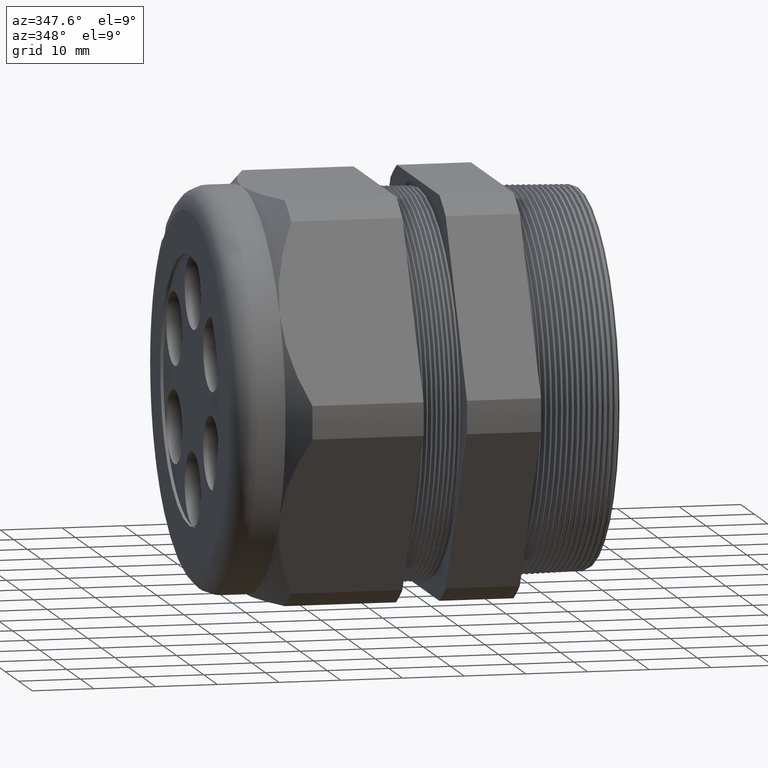
[diagram: clean part render]
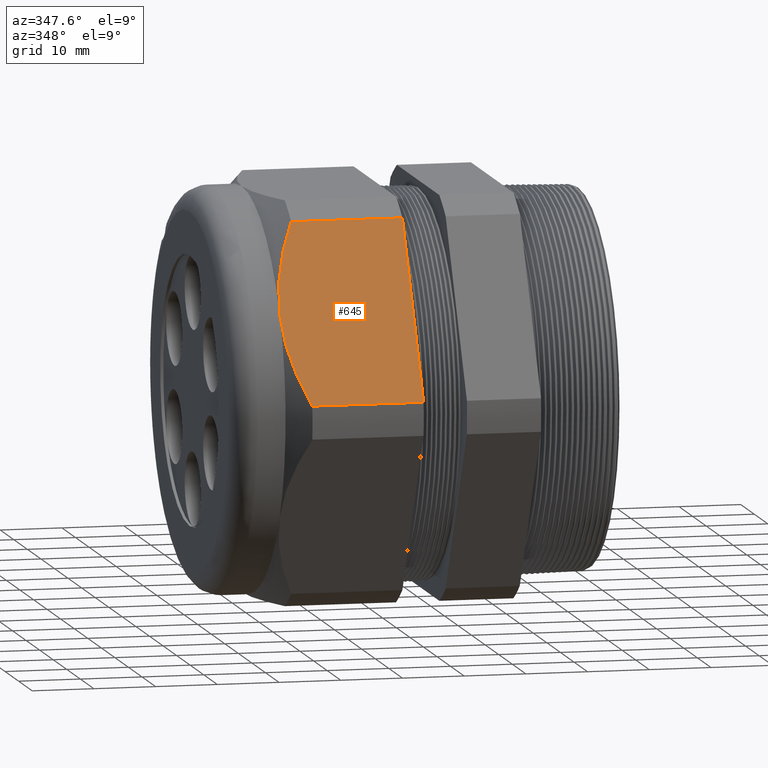
[diagram: same view with one face highlighted and labeled with its STEP entity id]
A machine part, auxiliary view. The second image highlights one B-rep face of the part: STEP entity #645.
In plain terms, the highlighted planar face has unit normal (0, -0.866, 0.5).
Its self-contained STEP definition (entity closure, byte-faithful):
#645 = ADVANCED_FACE ( 'NONE', ( #2690 ), #2689, .T. ) ;
#646 = EDGE_LOOP ( 'NONE', ( #647, #648, #651, #654, #713 ) ) ;
#647 = ORIENTED_EDGE ( 'NONE', *, *, #671, .T. ) ;
#648 = ORIENTED_EDGE ( 'NONE', *, *, #649, .T. ) ;
#649 = EDGE_CURVE ( 'NONE', #669, #650, #2746, .T. ) ;
#650 = VERTEX_POINT ( 'NONE', #2745 ) ;
#651 = ORIENTED_EDGE ( 'NONE', *, *, #652, .T. ) ;
#652 = EDGE_CURVE ( 'NONE', #650, #653, #2733, .T. ) ;
#653 = VERTEX_POINT ( 'NONE', #2734 ) ;
#654 = ORIENTED_EDGE ( 'NONE', *, *, #655, .F. ) ;
#655 = EDGE_CURVE ( 'NONE', #656, #653, #2724, .T. ) ;
#656 = VERTEX_POINT ( 'NONE', #2780 ) ;
#669 = VERTEX_POINT ( 'NONE', #2754 ) ;
#671 = EDGE_CURVE ( 'NONE', #672, #669, #2810, .T. ) ;
#672 = VERTEX_POINT ( 'NONE', #2806 ) ;
#713 = ORIENTED_EDGE ( 'NONE', *, *, #714, .F. ) ;
#714 = EDGE_CURVE ( 'NONE', #672, #656, #2602, .T. ) ;
#2598 = DIRECTION ( 'NONE',  ( 0.0000000000000000000, -0.4999999999999992800, -0.8660254037844390400 ) ) ;
#2599 = VECTOR ( 'NONE', #2598, 39.37007874015748900 ) ;
#2601 = CARTESIAN_POINT ( 'NONE',  ( -1.058802799999999400, -0.7985125168440829800, 1.176935750346350500 ) ) ;
#2602 = LINE ( 'NONE', #2601, #2599 ) ;
#2688 = AXIS2_PLACEMENT_3D ( 'NONE', #2749, #2748, #2747 ) ;
#2689 = PLANE ( 'NONE',  #2688 ) ;
#2690 = FACE_OUTER_BOUND ( 'NONE', #646, .T. ) ;
#2721 = DIRECTION ( 'NONE',  ( -1.000000000000000000, 0.0000000000000000000, 0.0000000000000000000 ) ) ;
#2722 = VECTOR ( 'NONE', #2721, 39.37007874015748100 ) ;
#2723 = CARTESIAN_POINT ( 'NONE',  ( 0.2400000000000001900, -1.416843767287496500, 0.1059546086707598600 ) ) ;
#2724 = LINE ( 'NONE', #2723, #2722 ) ;
#2725 = CARTESIAN_POINT ( 'NONE',  ( -1.768492000000000200, -1.416843767287496500, 0.1059546086707598600 ) ) ;
#2726 = CARTESIAN_POINT ( 'NONE',  ( -1.789807280376754000, -1.392288398414134300, 0.1484857551580196500 ) ) ;
#2727 = CARTESIAN_POINT ( 'NONE',  ( -1.809379497512200000, -1.367365115742175100, 0.1916541470372537200 ) ) ;
#2728 = CARTESIAN_POINT ( 'NONE',  ( -1.844076898263658400, -1.316757461105979400, 0.2793091761190434300 ) ) ;
#2729 = CARTESIAN_POINT ( 'NONE',  ( -1.859065044692606700, -1.291267087779650200, 0.3234597978241434100 ) ) ;
#2730 = CARTESIAN_POINT ( 'NONE',  ( -1.895822934946115800, -1.214147434025103500, 0.4570349563891387100 ) ) ;
#2731 = CARTESIAN_POINT ( 'NONE',  ( -1.909291999999999500, -1.161862181089929000, 0.5475956709594516100 ) ) ;
#2732 = CARTESIAN_POINT ( 'NONE',  ( -1.909291999999999500, -1.108512516844082400, 0.6399999999999993500 ) ) ;
#2733 = B_SPLINE_CURVE_WITH_KNOTS ( 'NONE', 3,
 ( #2732, #2731, #2730, #2729, #2728, #2727, #2726, #2725 ),
 .UNSPECIFIED., .F., .F.,
 ( 4, 2, 2, 4 ),
 ( 0.01607611893436946400, 0.02410854275338653000, 0.02812475466289506000, 0.03214096657240359000 ),
 .UNSPECIFIED. ) ;
#2734 = CARTESIAN_POINT ( 'NONE',  ( -1.768492000000000200, -1.416843767287496500, 0.1059546086707598600 ) ) ;
#2735 = CARTESIAN_POINT ( 'NONE',  ( -1.909291999999999500, -1.108512516844082400, 0.6399999999999993500 ) ) ;
#2736 = CARTESIAN_POINT ( 'NONE',  ( -1.909291999999999800, -1.095165949251063900, 0.6631169331777591000 ) ) ;
#2737 = CARTESIAN_POINT ( 'NONE',  ( -1.908447375922473200, -1.081697307527198500, 0.6864453049524360500 ) ) ;
#2738 = CARTESIAN_POINT ( 'NONE',  ( -1.905092703011700000, -1.054937557301920200, 0.7327945519404710500 ) ) ;
#2739 = CARTESIAN_POINT ( 'NONE',  ( -1.902593623238848500, -1.041660076878359900, 0.7557918226305783100 ) ) ;
#2740 = CARTESIAN_POINT ( 'NONE',  ( -1.892779944983450400, -1.002116279323628700, 0.8242836891195908200 ) ) ;
#2741 = CARTESIAN_POINT ( 'NONE',  ( -1.883148185439523300, -0.9761386958899320700, 0.8692781834846132800 ) ) ;
#2742 = CARTESIAN_POINT ( 'NONE',  ( -1.846263399014646900, -0.8992014914594107500, 1.002537330550589800 ) ) ;
#2743 = CARTESIAN_POINT ( 'NONE',  ( -1.811069874631296300, -0.8492313093245910100, 1.089088224871567400 ) ) ;
#2744 = CARTESIAN_POINT ( 'NONE',  ( -1.768492000000000000, -0.8001812664006672200, 1.174045391329238400 ) ) ;
#2745 = CARTESIAN_POINT ( 'NONE',  ( -1.909291999999999500, -1.108512516844082400, 0.6399999999999993500 ) ) ;
#2746 = B_SPLINE_CURVE_WITH_KNOTS ( 'NONE', 3,
 ( #2744, #2743, #2742, #2741, #2740, #2739, #2738, #2737, #2736, #2735 ),
 .UNSPECIFIED., .F., .F.,
 ( 4, 2, 2, 2, 4 ),
 ( 2.483246117753155000E-007, 0.008038183629490618400, 0.01205715128193004200, 0.01406663510814975400, 0.01607611893436946400 ),
 .UNSPECIFIED. ) ;
#2747 = DIRECTION ( 'NONE',  ( 0.0000000000000000000, -0.4999999999999992800, -0.8660254037844390400 ) ) ;
#2748 = DIRECTION ( 'NONE',  ( 0.0000000000000000000, -0.8660254037844390400, 0.4999999999999992800 ) ) ;
#2749 = CARTESIAN_POINT ( 'NONE',  ( 0.2400000000000001900, -1.416843767287496500, 0.1059546086707604700 ) ) ;
#2754 = CARTESIAN_POINT ( 'NONE',  ( -1.768492000000000000, -0.8001812664006672200, 1.174045391329238400 ) ) ;
#2780 = CARTESIAN_POINT ( 'NONE',  ( -1.058802799999999400, -1.416843767287496500, 0.1059546086707598600 ) ) ;
#2806 = CARTESIAN_POINT ( 'NONE',  ( -1.058802799999999400, -0.8001812664006673300, 1.174045391329238400 ) ) ;
#2807 = DIRECTION ( 'NONE',  ( -1.000000000000000000, 0.0000000000000000000, 0.0000000000000000000 ) ) ;
#2808 = VECTOR ( 'NONE', #2807, 39.37007874015748100 ) ;
#2809 = CARTESIAN_POINT ( 'NONE',  ( 0.2400000000000001900, -0.8001812664006673300, 1.174045391329238400 ) ) ;
#2810 = LINE ( 'NONE', #2809, #2808 ) ;